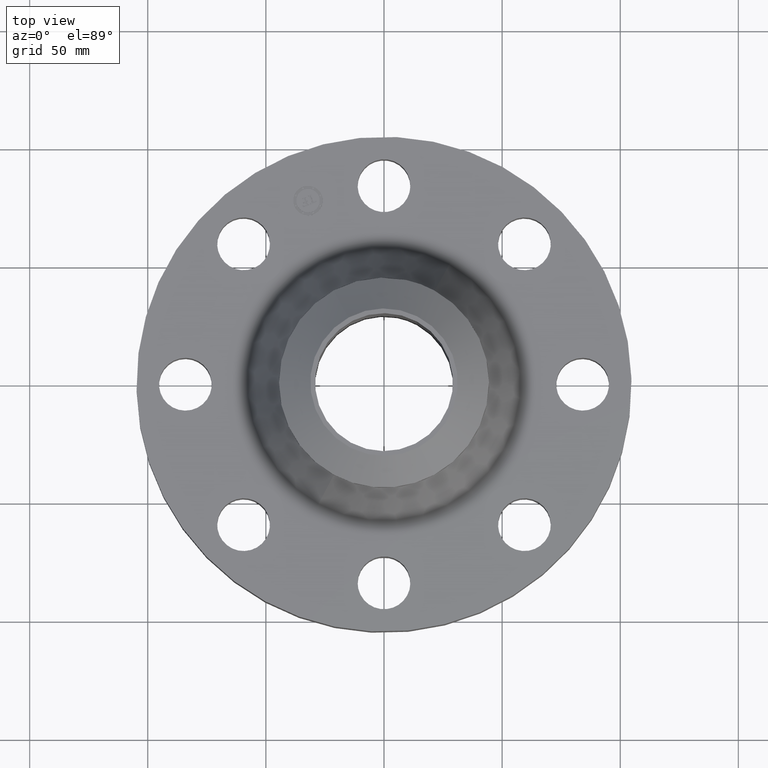
[diagram: clean part render]
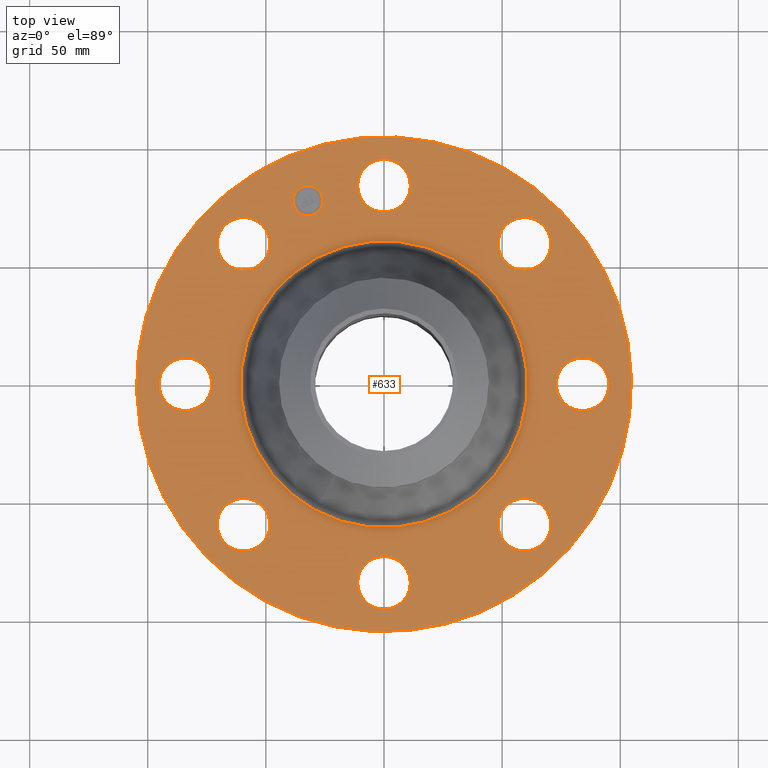
[diagram: same view with one face highlighted and labeled with its STEP entity id]
A machine part, top view. The second image highlights one B-rep face of the part: STEP entity #633.
In plain terms, the highlighted planar face has unit normal (0, 0, -1).
Its self-contained STEP definition (entity closure, byte-faithful):
#65=AXIS2_PLACEMENT_3D('Circle Axis2P3D',#63,#64,$) ;
#447=AXIS2_PLACEMENT_3D('Plane Axis2P3D',#444,#445,#446) ;
#451=AXIS2_PLACEMENT_3D('Circle Axis2P3D',#449,#450,$) ;
#460=AXIS2_PLACEMENT_3D('Circle Axis2P3D',#458,#459,$) ;
#473=AXIS2_PLACEMENT_3D('Circle Axis2P3D',#471,#472,$) ;
#482=AXIS2_PLACEMENT_3D('Circle Axis2P3D',#480,#481,$) ;
#491=AXIS2_PLACEMENT_3D('Circle Axis2P3D',#489,#490,$) ;
#500=AXIS2_PLACEMENT_3D('Circle Axis2P3D',#498,#499,$) ;
#509=AXIS2_PLACEMENT_3D('Circle Axis2P3D',#507,#508,$) ;
#518=AXIS2_PLACEMENT_3D('Circle Axis2P3D',#516,#517,$) ;
#527=AXIS2_PLACEMENT_3D('Circle Axis2P3D',#525,#526,$) ;
#536=AXIS2_PLACEMENT_3D('Circle Axis2P3D',#534,#535,$) ;
#545=AXIS2_PLACEMENT_3D('Circle Axis2P3D',#543,#544,$) ;
#554=AXIS2_PLACEMENT_3D('Circle Axis2P3D',#552,#553,$) ;
#563=AXIS2_PLACEMENT_3D('Circle Axis2P3D',#561,#562,$) ;
#572=AXIS2_PLACEMENT_3D('Circle Axis2P3D',#570,#571,$) ;
#581=AXIS2_PLACEMENT_3D('Circle Axis2P3D',#579,#580,$) ;
#590=AXIS2_PLACEMENT_3D('Circle Axis2P3D',#588,#589,$) ;
#599=AXIS2_PLACEMENT_3D('Circle Axis2P3D',#597,#598,$) ;
#608=AXIS2_PLACEMENT_3D('Circle Axis2P3D',#606,#607,$) ;
#617=AXIS2_PLACEMENT_3D('Circle Axis2P3D',#615,#616,$) ;
#626=AXIS2_PLACEMENT_3D('Circle Axis2P3D',#624,#625,$) ;
#46=CARTESIAN_POINT('Vertex',(-0.386136327233,3.520947237,1.24999999999)) ;
#60=CARTESIAN_POINT('Vertex',(0.386136327236,3.09905276303,1.24999999999)) ;
#63=CARTESIAN_POINT('Axis2P3D Location',(0.,3.31000000001,1.24999999999)) ;
#128=CARTESIAN_POINT('Control Point',(0.386136327233,3.09905276302,1.24999999999)) ;
#129=CARTESIAN_POINT('Control Point',(0.353000812733,3.03839861058,1.24999999999)) ;
#130=CARTESIAN_POINT('Control Point',(0.307955883249,2.98425060119,1.24999999999)) ;
#131=CARTESIAN_POINT('Control Point',(0.252695322491,2.93973715979,1.24999999999)) ;
#132=CARTESIAN_POINT('Control Point',(0.127698083922,2.87477639684,1.24999999999)) ;
#133=CARTESIAN_POINT('Control Point',(-0.0125819155223,2.86190269778,1.25)) ;
#134=CARTESIAN_POINT('Control Point',(-0.0831327890369,2.86950205876,1.25)) ;
#135=CARTESIAN_POINT('Control Point',(-0.217453380045,2.91195425779,1.25)) ;
#136=CARTESIAN_POINT('Control Point',(-0.325749398821,3.00204411676,1.25)) ;
#137=CARTESIAN_POINT('Control Point',(-0.370262840224,3.05730467752,1.25)) ;
#138=CARTESIAN_POINT('Control Point',(-0.435223603166,3.18230191609,1.25)) ;
#139=CARTESIAN_POINT('Control Point',(-0.448097302225,3.32258191553,1.25000000001)) ;
#140=CARTESIAN_POINT('Control Point',(-0.440497941251,3.39313278905,1.25000000001)) ;
#141=CARTESIAN_POINT('Control Point',(-0.419271841734,3.46029308455,1.25000000001)) ;
#142=CARTESIAN_POINT('Control Point',(-0.386136327233,3.520947237,1.25000000001)) ;
#444=CARTESIAN_POINT('Axis2P3D Location',(0.,4.12500000002,1.25000000001)) ;
#449=CARTESIAN_POINT('Axis2P3D Location',(-1.1189649382E-015,5.33354637795E-012,1.25000000001)) ;
#453=CARTESIAN_POINT('Vertex',(1.97763034678,3.62002806783,1.25000000001)) ;
#455=CARTESIAN_POINT('Vertex',(-1.97763034675,-3.62002806781,1.24999999997)) ;
#458=CARTESIAN_POINT('Axis2P3D Location',(1.1189649382E-015,5.33466534289E-012,1.25000000001)) ;
#471=CARTESIAN_POINT('Axis2P3D Location',(5.59482469102E-016,5.33410586042E-012,1.25000000001)) ;
#475=CARTESIAN_POINT('Vertex',(-1.14604206374,-2.09781592625,1.25000000001)) ;
#477=CARTESIAN_POINT('Vertex',(1.14604206374,2.09781592625,1.25000000001)) ;
#480=CARTESIAN_POINT('Axis2P3D Location',(-5.59482469102E-016,5.33410586042E-012,1.25000000001)) ;
#489=CARTESIAN_POINT('Axis2P3D Location',(2.34052344574,2.34052344574,1.25000000001)) ;
#493=CARTESIAN_POINT('Vertex',(2.46440083947,1.91832160856,1.25000000001)) ;
#495=CARTESIAN_POINT('Vertex',(2.21664605204,2.76272528294,1.24999999999)) ;
#498=CARTESIAN_POINT('Axis2P3D Location',(2.34052344574,2.34052344574,1.25000000001)) ;
#507=CARTESIAN_POINT('Axis2P3D Location',(3.31000000001,-1.66501982805E-012,1.25000000001)) ;
#511=CARTESIAN_POINT('Vertex',(3.09905276303,-0.386136327236,1.24999999999)) ;
#513=CARTESIAN_POINT('Vertex',(3.520947237,0.386136327233,1.24999999999)) ;
#516=CARTESIAN_POINT('Axis2P3D Location',(3.30999999999,1.23332315489E-011,1.25000000001)) ;
#525=CARTESIAN_POINT('Axis2P3D Location',(2.34052344574,-2.34052344573,1.25000000001)) ;
#529=CARTESIAN_POINT('Vertex',(1.91832160856,-2.46440083947,1.25000000001)) ;
#531=CARTESIAN_POINT('Vertex',(2.76272528294,-2.21664605204,1.24999999999)) ;
#534=CARTESIAN_POINT('Axis2P3D Location',(2.34052344574,-2.34052344573,1.25000000001)) ;
#543=CARTESIAN_POINT('Axis2P3D Location',(1.74838271595E-017,-3.31000000003,1.25000000001)) ;
#547=CARTESIAN_POINT('Vertex',(-0.386136327236,-3.09905276303,1.24999999999)) ;
#549=CARTESIAN_POINT('Vertex',(0.386136327233,-3.520947237,1.24999999999)) ;
#552=CARTESIAN_POINT('Axis2P3D Location',(-1.74838271595E-017,-3.31000000003,1.25000000001)) ;
#561=CARTESIAN_POINT('Axis2P3D Location',(-2.34052344576,-2.34052344574,1.25000000001)) ;
#565=CARTESIAN_POINT('Vertex',(-2.46440083947,-1.91832160855,1.25000000001)) ;
#567=CARTESIAN_POINT('Vertex',(-2.21664605204,-2.76272528294,1.24999999999)) ;
#570=CARTESIAN_POINT('Axis2P3D Location',(-2.34052344574,-2.34052344573,1.25000000001)) ;
#579=CARTESIAN_POINT('Axis2P3D Location',(-3.31000000001,1.23332315489E-011,1.25000000001)) ;
#583=CARTESIAN_POINT('Vertex',(-3.09905276303,0.386136327236,1.24999999999)) ;
#585=CARTESIAN_POINT('Vertex',(-3.520947237,-0.386136327233,1.24999999999)) ;
#588=CARTESIAN_POINT('Axis2P3D Location',(-3.30999999999,-1.66501982805E-012,1.25000000001)) ;
#597=CARTESIAN_POINT('Axis2P3D Location',(-2.34052344574,2.34052344573,1.25000000001)) ;
#601=CARTESIAN_POINT('Vertex',(-1.91832160856,2.4644008394,1.25000000001)) ;
#603=CARTESIAN_POINT('Vertex',(-2.76272528294,2.21664605204,1.24999999999)) ;
#606=CARTESIAN_POINT('Axis2P3D Location',(-2.34052344575,2.34052344575,1.25000000001)) ;
#615=CARTESIAN_POINT('Axis2P3D Location',(-1.26668216114,3.05804125265,1.25000000001)) ;
#619=CARTESIAN_POINT('Vertex',(-1.49534234542,2.96332710313,1.25000000001)) ;
#621=CARTESIAN_POINT('Vertex',(-1.03802197686,3.15275540217,1.25000000001)) ;
#624=CARTESIAN_POINT('Axis2P3D Location',(-1.26668216112,3.05804125259,1.25000000001)) ;
#64=DIRECTION('Axis2P3D Direction',(0.,-0.,-0.0393700787402)) ;
#445=DIRECTION('Axis2P3D Direction',(0.,0.,-0.0393700787402)) ;
#446=DIRECTION('Axis2P3D XDirection',(0.0393700787402,0.,0.)) ;
#450=DIRECTION('Axis2P3D Direction',(0.,0.,-0.0393700787402)) ;
#459=DIRECTION('Axis2P3D Direction',(0.,0.,-0.0393700787402)) ;
#472=DIRECTION('Axis2P3D Direction',(0.,0.,-0.0393700787402)) ;
#481=DIRECTION('Axis2P3D Direction',(0.,0.,-0.0393700787402)) ;
#490=DIRECTION('Axis2P3D Direction',(0.,0.,-0.0393700787402)) ;
#499=DIRECTION('Axis2P3D Direction',(0.,0.,-0.0393700787402)) ;
#508=DIRECTION('Axis2P3D Direction',(0.,0.,-0.0393700787402)) ;
#517=DIRECTION('Axis2P3D Direction',(0.,0.,-0.0393700787402)) ;
#526=DIRECTION('Axis2P3D Direction',(0.,0.,-0.0393700787402)) ;
#535=DIRECTION('Axis2P3D Direction',(0.,0.,-0.0393700787402)) ;
#544=DIRECTION('Axis2P3D Direction',(0.,0.,-0.0393700787402)) ;
#553=DIRECTION('Axis2P3D Direction',(0.,0.,-0.0393700787402)) ;
#562=DIRECTION('Axis2P3D Direction',(0.,0.,-0.0393700787402)) ;
#571=DIRECTION('Axis2P3D Direction',(0.,0.,-0.0393700787402)) ;
#580=DIRECTION('Axis2P3D Direction',(0.,0.,-0.0393700787402)) ;
#589=DIRECTION('Axis2P3D Direction',(0.,0.,-0.0393700787402)) ;
#598=DIRECTION('Axis2P3D Direction',(0.,0.,-0.0393700787402)) ;
#607=DIRECTION('Axis2P3D Direction',(0.,0.,-0.0393700787402)) ;
#616=DIRECTION('Axis2P3D Direction',(0.,0.,-0.0393700787402)) ;
#625=DIRECTION('Axis2P3D Direction',(0.,0.,-0.0393700787402)) ;
#464=ORIENTED_EDGE('',*,*,#457,.F.) ;
#465=ORIENTED_EDGE('',*,*,#462,.F.) ;
#468=ORIENTED_EDGE('',*,*,#67,.T.) ;
#469=ORIENTED_EDGE('',*,*,#143,.T.) ;
#486=ORIENTED_EDGE('',*,*,#479,.T.) ;
#487=ORIENTED_EDGE('',*,*,#484,.T.) ;
#504=ORIENTED_EDGE('',*,*,#497,.T.) ;
#505=ORIENTED_EDGE('',*,*,#502,.T.) ;
#522=ORIENTED_EDGE('',*,*,#515,.T.) ;
#523=ORIENTED_EDGE('',*,*,#520,.T.) ;
#540=ORIENTED_EDGE('',*,*,#533,.T.) ;
#541=ORIENTED_EDGE('',*,*,#538,.T.) ;
#558=ORIENTED_EDGE('',*,*,#551,.T.) ;
#559=ORIENTED_EDGE('',*,*,#556,.T.) ;
#576=ORIENTED_EDGE('',*,*,#569,.T.) ;
#577=ORIENTED_EDGE('',*,*,#574,.T.) ;
#594=ORIENTED_EDGE('',*,*,#587,.T.) ;
#595=ORIENTED_EDGE('',*,*,#592,.T.) ;
#612=ORIENTED_EDGE('',*,*,#605,.T.) ;
#613=ORIENTED_EDGE('',*,*,#610,.T.) ;
#630=ORIENTED_EDGE('',*,*,#623,.T.) ;
#631=ORIENTED_EDGE('',*,*,#628,.T.) ;
#470=FACE_BOUND('',#467,.T.) ;
#488=FACE_BOUND('',#485,.T.) ;
#506=FACE_BOUND('',#503,.T.) ;
#524=FACE_BOUND('',#521,.T.) ;
#542=FACE_BOUND('',#539,.T.) ;
#560=FACE_BOUND('',#557,.T.) ;
#578=FACE_BOUND('',#575,.T.) ;
#596=FACE_BOUND('',#593,.T.) ;
#614=FACE_BOUND('',#611,.T.) ;
#632=FACE_BOUND('',#629,.T.) ;
#633=ADVANCED_FACE('PartBody',(#466,#470,#488,#506,#524,#542,#560,#578,#596,#614,#632),#448,.F.) ;
#127=B_SPLINE_CURVE_WITH_KNOTS('',5,(#128,#129,#130,#131,#132,#133,#134,#135,#136,#137,#138,#139,#140,#141,#142),.UNSPECIFIED.,.F.,.U.,(6,3,3,3,6),(-17.5552197483,-8.77760987417,0.,8.77760987417,17.5552197483),.UNSPECIFIED.) ;
#66=CIRCLE('generated circle',#65,0.440000000002) ;
#452=CIRCLE('generated circle',#451,4.12500000004) ;
#461=CIRCLE('generated circle',#460,4.12500000004) ;
#474=CIRCLE('generated circle',#473,2.3904485086) ;
#483=CIRCLE('generated circle',#482,2.3904485086) ;
#492=CIRCLE('generated circle',#491,0.439999999995) ;
#501=CIRCLE('generated circle',#500,0.439999999995) ;
#510=CIRCLE('generated circle',#509,0.440000000002) ;
#519=CIRCLE('generated circle',#518,0.440000000002) ;
#528=CIRCLE('generated circle',#527,0.439999999995) ;
#537=CIRCLE('generated circle',#536,0.439999999995) ;
#546=CIRCLE('generated circle',#545,0.44000000002) ;
#555=CIRCLE('generated circle',#554,0.44000000002) ;
#564=CIRCLE('generated circle',#563,0.439999999995) ;
#573=CIRCLE('generated circle',#572,0.439999999995) ;
#582=CIRCLE('generated circle',#581,0.440000000002) ;
#591=CIRCLE('generated circle',#590,0.440000000002) ;
#600=CIRCLE('generated circle',#599,0.439999999984) ;
#609=CIRCLE('generated circle',#608,0.439999999984) ;
#618=CIRCLE('generated circle',#617,0.247499999989) ;
#627=CIRCLE('generated circle',#626,0.247499999989) ;
#67=EDGE_CURVE('',#47,#61,#66,.T.) ;
#143=EDGE_CURVE('',#61,#47,#127,.T.) ;
#457=EDGE_CURVE('',#454,#456,#452,.T.) ;
#462=EDGE_CURVE('',#456,#454,#461,.T.) ;
#479=EDGE_CURVE('',#476,#478,#474,.T.) ;
#484=EDGE_CURVE('',#478,#476,#483,.T.) ;
#497=EDGE_CURVE('',#494,#496,#492,.T.) ;
#502=EDGE_CURVE('',#496,#494,#501,.T.) ;
#515=EDGE_CURVE('',#512,#514,#510,.T.) ;
#520=EDGE_CURVE('',#514,#512,#519,.T.) ;
#533=EDGE_CURVE('',#530,#532,#528,.T.) ;
#538=EDGE_CURVE('',#532,#530,#537,.T.) ;
#551=EDGE_CURVE('',#548,#550,#546,.T.) ;
#556=EDGE_CURVE('',#550,#548,#555,.T.) ;
#569=EDGE_CURVE('',#566,#568,#564,.T.) ;
#574=EDGE_CURVE('',#568,#566,#573,.T.) ;
#587=EDGE_CURVE('',#584,#586,#582,.T.) ;
#592=EDGE_CURVE('',#586,#584,#591,.T.) ;
#605=EDGE_CURVE('',#602,#604,#600,.T.) ;
#610=EDGE_CURVE('',#604,#602,#609,.T.) ;
#623=EDGE_CURVE('',#620,#622,#618,.T.) ;
#628=EDGE_CURVE('',#622,#620,#627,.T.) ;
#463=EDGE_LOOP('',(#464,#465)) ;
#467=EDGE_LOOP('',(#468,#469)) ;
#485=EDGE_LOOP('',(#486,#487)) ;
#503=EDGE_LOOP('',(#504,#505)) ;
#521=EDGE_LOOP('',(#522,#523)) ;
#539=EDGE_LOOP('',(#540,#541)) ;
#557=EDGE_LOOP('',(#558,#559)) ;
#575=EDGE_LOOP('',(#576,#577)) ;
#593=EDGE_LOOP('',(#594,#595)) ;
#611=EDGE_LOOP('',(#612,#613)) ;
#629=EDGE_LOOP('',(#630,#631)) ;
#466=FACE_OUTER_BOUND('',#463,.T.) ;
#448=PLANE('',#447) ;
#47=VERTEX_POINT('',#46) ;
#61=VERTEX_POINT('',#60) ;
#454=VERTEX_POINT('',#453) ;
#456=VERTEX_POINT('',#455) ;
#476=VERTEX_POINT('',#475) ;
#478=VERTEX_POINT('',#477) ;
#494=VERTEX_POINT('',#493) ;
#496=VERTEX_POINT('',#495) ;
#512=VERTEX_POINT('',#511) ;
#514=VERTEX_POINT('',#513) ;
#530=VERTEX_POINT('',#529) ;
#532=VERTEX_POINT('',#531) ;
#548=VERTEX_POINT('',#547) ;
#550=VERTEX_POINT('',#549) ;
#566=VERTEX_POINT('',#565) ;
#568=VERTEX_POINT('',#567) ;
#584=VERTEX_POINT('',#583) ;
#586=VERTEX_POINT('',#585) ;
#602=VERTEX_POINT('',#601) ;
#604=VERTEX_POINT('',#603) ;
#620=VERTEX_POINT('',#619) ;
#622=VERTEX_POINT('',#621) ;